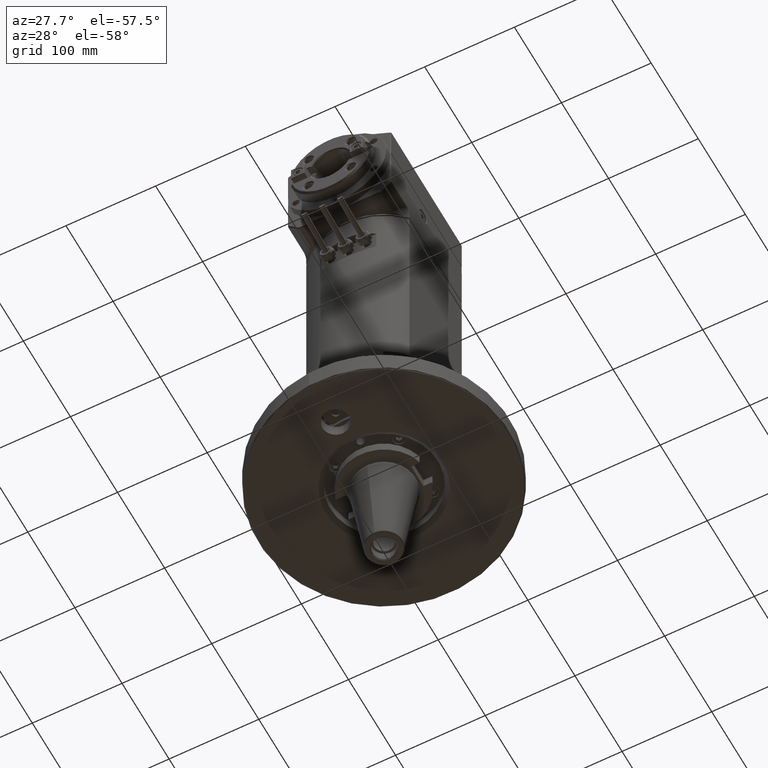
[diagram: clean part render]
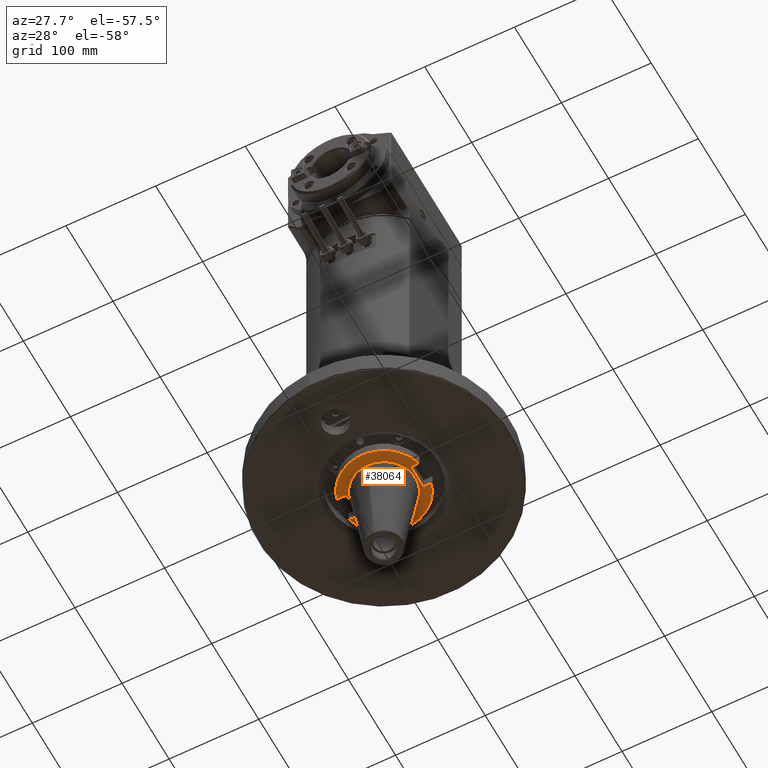
[diagram: same view with one face highlighted and labeled with its STEP entity id]
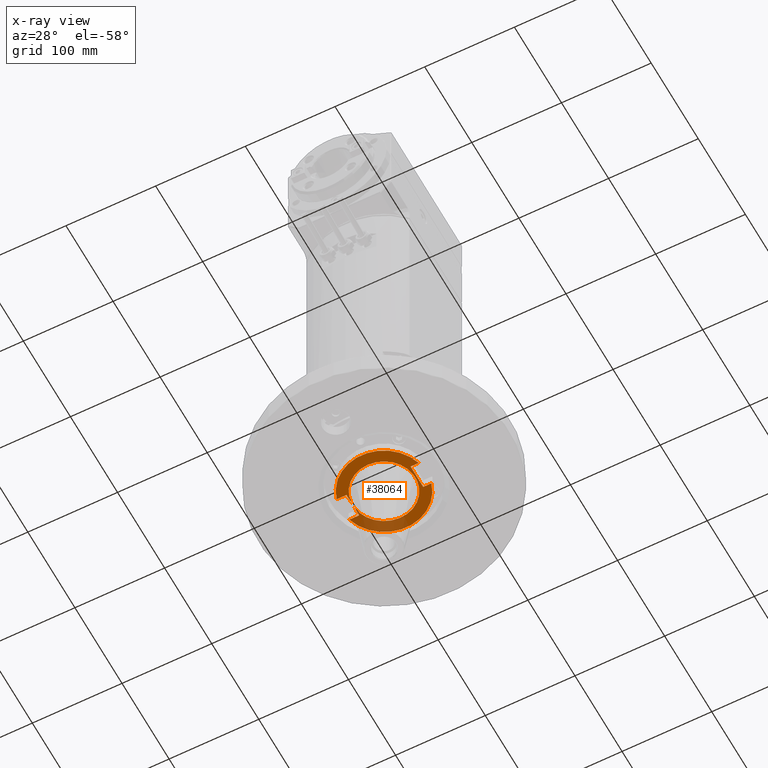
[diagram: x-ray of the same camera — body ghosted, the highlighted face saturated]
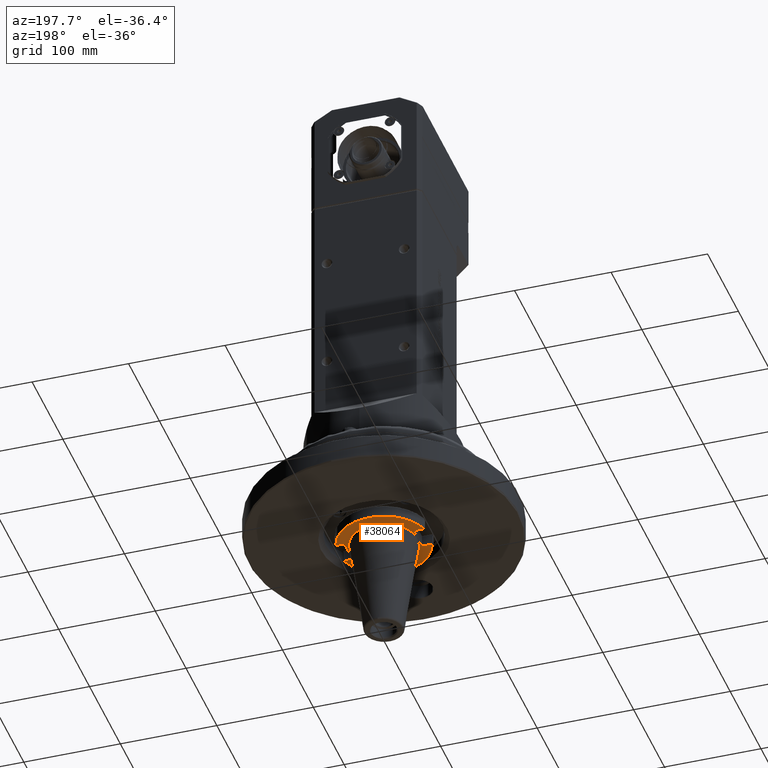
[diagram: same view with one face highlighted and labeled with its STEP entity id]
A machine part, auxiliary view. The second image highlights one B-rep face of the part: STEP entity #38064.
The next image is the same camera in x-ray: the body ghosted, the highlighted face saturated — about 22% of this face is hidden behind the body in this view.
A second angle (auxiliary view) of the same face is appended — the face is thin or edge-on in the first view.
In plain terms, the highlighted planar face has unit normal (0, 0, 1).
Its self-contained STEP definition (entity closure, byte-faithful):
#4367=PLANE('',#41798);
#6198=FACE_OUTER_BOUND('',#8648,.T.);
#8648=EDGE_LOOP('',(#33420,#33421,#33422,#33423,#33424,#33425,#33426,#33427,
#33428,#33429,#33430));
#11236=LINE('',#71729,#13782);
#11237=LINE('',#71733,#13783);
#11238=LINE('',#71734,#13784);
#11239=LINE('',#71736,#13785);
#11240=LINE('',#71738,#13786);
#11241=LINE('',#71742,#13787);
#11242=LINE('',#71743,#13788);
#13782=VECTOR('',#50904,0.393700787401575);
#13783=VECTOR('',#50907,0.393700787401575);
#13784=VECTOR('',#50908,0.413298822757087);
#13785=VECTOR('',#50909,0.413298822757087);
#13786=VECTOR('',#50910,0.393700787401575);
#13787=VECTOR('',#50913,0.393700787401575);
#13788=VECTOR('',#50914,1.05905511811024);
#15657=CIRCLE('',#41795,1.375);
#15658=CIRCLE('',#41797,1.375);
#15659=CIRCLE('',#41799,1.87992125984252);
#15660=CIRCLE('',#41800,1.87992125984252);
#18932=VERTEX_POINT('',#71719);
#18933=VERTEX_POINT('',#71720);
#18934=VERTEX_POINT('',#71722);
#18935=VERTEX_POINT('',#71727);
#18936=VERTEX_POINT('',#71728);
#18937=VERTEX_POINT('',#71730);
#18938=VERTEX_POINT('',#71732);
#18939=VERTEX_POINT('',#71735);
#18940=VERTEX_POINT('',#71737);
#18941=VERTEX_POINT('',#71739);
#18942=VERTEX_POINT('',#71741);
#23860=EDGE_CURVE('',#18932,#18933,#15657,.T.);
#23862=EDGE_CURVE('',#18933,#18934,#15658,.T.);
#23864=EDGE_CURVE('',#18935,#18936,#11236,.T.);
#23865=EDGE_CURVE('',#18936,#18937,#15659,.T.);
#23866=EDGE_CURVE('',#18937,#18938,#11237,.T.);
#23867=EDGE_CURVE('',#18938,#18932,#11238,.T.);
#23868=EDGE_CURVE('',#18934,#18939,#11239,.T.);
#23869=EDGE_CURVE('',#18939,#18940,#11240,.T.);
#23870=EDGE_CURVE('',#18940,#18941,#15660,.T.);
#23871=EDGE_CURVE('',#18941,#18942,#11241,.T.);
#23872=EDGE_CURVE('',#18935,#18942,#11242,.T.);
#33420=ORIENTED_EDGE('',*,*,#23864,.T.);
#33421=ORIENTED_EDGE('',*,*,#23865,.T.);
#33422=ORIENTED_EDGE('',*,*,#23866,.T.);
#33423=ORIENTED_EDGE('',*,*,#23867,.T.);
#33424=ORIENTED_EDGE('',*,*,#23860,.T.);
#33425=ORIENTED_EDGE('',*,*,#23862,.T.);
#33426=ORIENTED_EDGE('',*,*,#23868,.T.);
#33427=ORIENTED_EDGE('',*,*,#23869,.T.);
#33428=ORIENTED_EDGE('',*,*,#23870,.T.);
#33429=ORIENTED_EDGE('',*,*,#23871,.T.);
#33430=ORIENTED_EDGE('',*,*,#23872,.F.);
#38064=ADVANCED_FACE('',(#6198),#4367,.F.);
#41795=AXIS2_PLACEMENT_3D('',#71721,#50895,#50896);
#41797=AXIS2_PLACEMENT_3D('',#71724,#50899,#50900);
#41798=AXIS2_PLACEMENT_3D('',#71726,#50902,#50903);
#41799=AXIS2_PLACEMENT_3D('',#71731,#50905,#50906);
#41800=AXIS2_PLACEMENT_3D('',#71740,#50911,#50912);
#50895=DIRECTION('center_axis',(0.,0.,1.));
#50896=DIRECTION('ref_axis',(-0.996420901932713,-0.0845303862028211,0.));
#50899=DIRECTION('center_axis',(0.,0.,1.));
#50900=DIRECTION('ref_axis',(-0.996420901932713,-0.0845303862028211,0.));
#50902=DIRECTION('center_axis',(0.,0.,1.));
#50903=DIRECTION('ref_axis',(0.,1.,0.));
#50904=DIRECTION('',(1.,0.,0.));
#50905=DIRECTION('center_axis',(0.,0.,-1.));
#50906=DIRECTION('ref_axis',(0.959509755088234,-0.28167539809241,0.));
#50907=DIRECTION('',(1.,0.,0.));
#50908=DIRECTION('',(0.,1.,0.));
#50909=DIRECTION('',(0.,1.,0.));
#50910=DIRECTION('',(-1.,0.,0.));
#50911=DIRECTION('center_axis',(0.,0.,-1.));
#50912=DIRECTION('ref_axis',(-0.959509755087708,0.281675398094202,0.));
#50913=DIRECTION('',(-1.,0.,0.));
#50914=DIRECTION('',(0.,1.,0.));
#71719=CARTESIAN_POINT('',(-1.37007874015749,-0.116229281029909,-0.866141732283462));
#71720=CARTESIAN_POINT('',(1.68388934882761E-16,-1.375,-0.866141732283464));
#71721=CARTESIAN_POINT('Origin',(0.,5.06251629568898E-16,-0.866141732283465));
#71722=CARTESIAN_POINT('',(-1.37007874015748,0.116229281029982,-0.866141732283464));
#71724=CARTESIAN_POINT('Origin',(0.,5.06251629568898E-16,-0.866141732283465));
#71726=CARTESIAN_POINT('Origin',(0.,5.06251629568898E-16,-0.866141732283465));
#71727=CARTESIAN_POINT('',(1.44488188976378,-0.529527559055118,-0.866141732283465));
#71728=CARTESIAN_POINT('',(1.80380299377927,-0.529527092163362,-0.866141737362942));
#71729=CARTESIAN_POINT('',(0.81709244722874,-0.529527559055118,-0.866141732283465));
#71730=CARTESIAN_POINT('',(-1.80380293291535,-0.529527074297308,-0.866141732283465));
#71731=CARTESIAN_POINT('Origin',(0.,5.06251629568898E-16,-0.866141732283465));
#71732=CARTESIAN_POINT('',(-1.37007874015748,-0.529527559055118,-0.866141732283465));
#71733=CARTESIAN_POINT('',(-0.798391659827165,-0.529527559055118,-0.866141732283465));
#71734=CARTESIAN_POINT('',(-1.37007874015748,-0.529527559055118,-0.866141732283465));
#71735=CARTESIAN_POINT('',(-1.37007874015748,0.529527559055118,-0.866141732283465));
#71736=CARTESIAN_POINT('',(-1.37007874015748,0.11622873629811,-0.866141732283465));
#71737=CARTESIAN_POINT('',(-1.80380299377622,0.529527092163154,-0.866141737362945));
#71738=CARTESIAN_POINT('',(-0.798391659827165,0.529527559055118,-0.866141732283465));
#71739=CARTESIAN_POINT('',(1.80380293291568,0.529527074296198,-0.866141732283465));
#71740=CARTESIAN_POINT('Origin',(0.,5.06251629568898E-16,-0.866141732283465));
#71741=CARTESIAN_POINT('',(1.44488188976378,0.529527559055118,-0.866141732283465));
#71742=CARTESIAN_POINT('',(0.81709244722874,0.529527559055118,-0.866141732283465));
#71743=CARTESIAN_POINT('',(1.44488188976378,-0.529527559055118,-0.866141732283465));